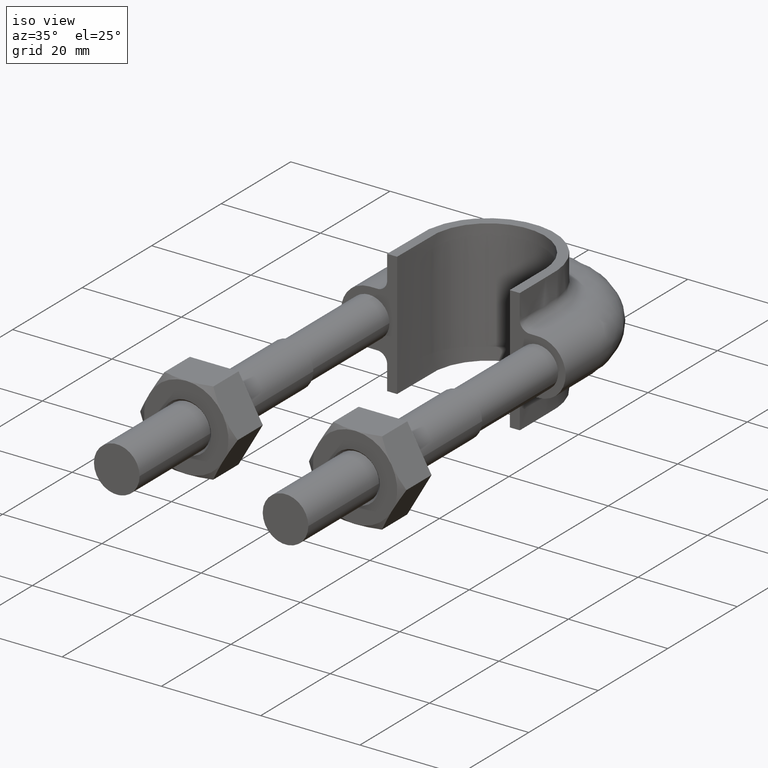
[diagram: clean part render]
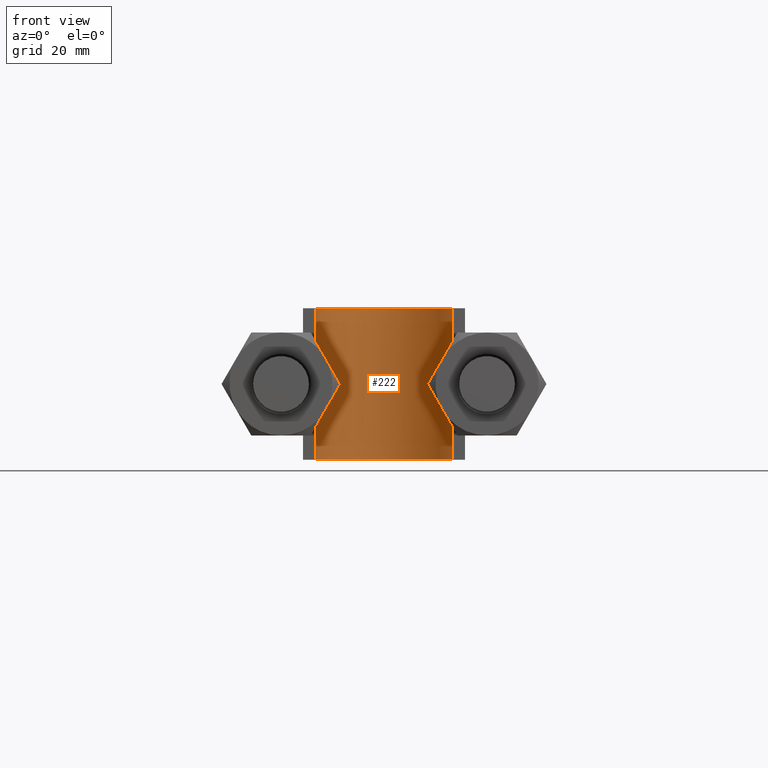
[diagram: tour spotlight — one face highlighted and labeled with its STEP entity id]
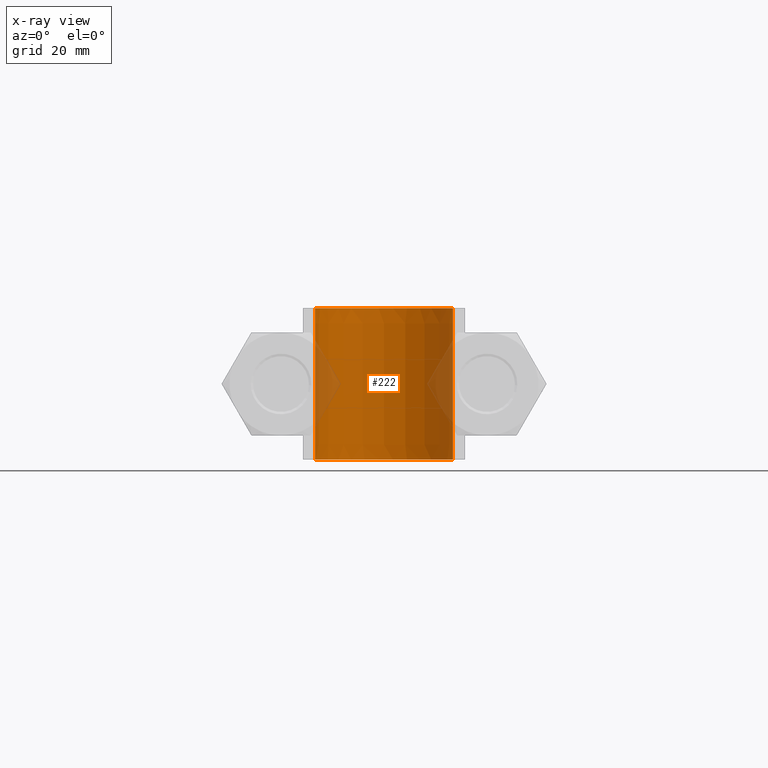
[diagram: x-ray of the same camera — body ghosted, this tour face saturated]
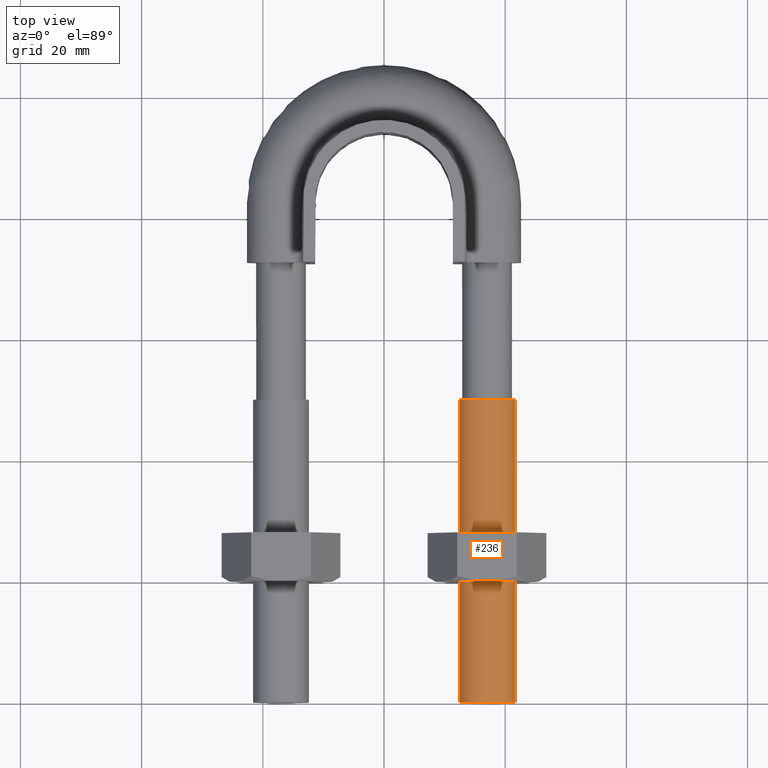
[diagram: tour spotlight — one face highlighted and labeled with its STEP entity id]
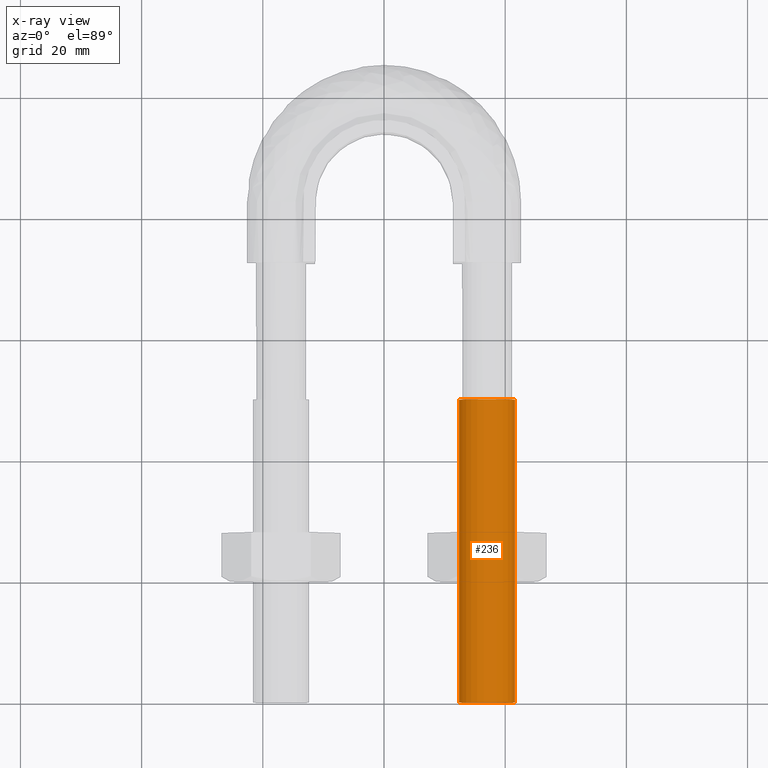
[diagram: x-ray of the same camera — body ghosted, this tour face saturated]
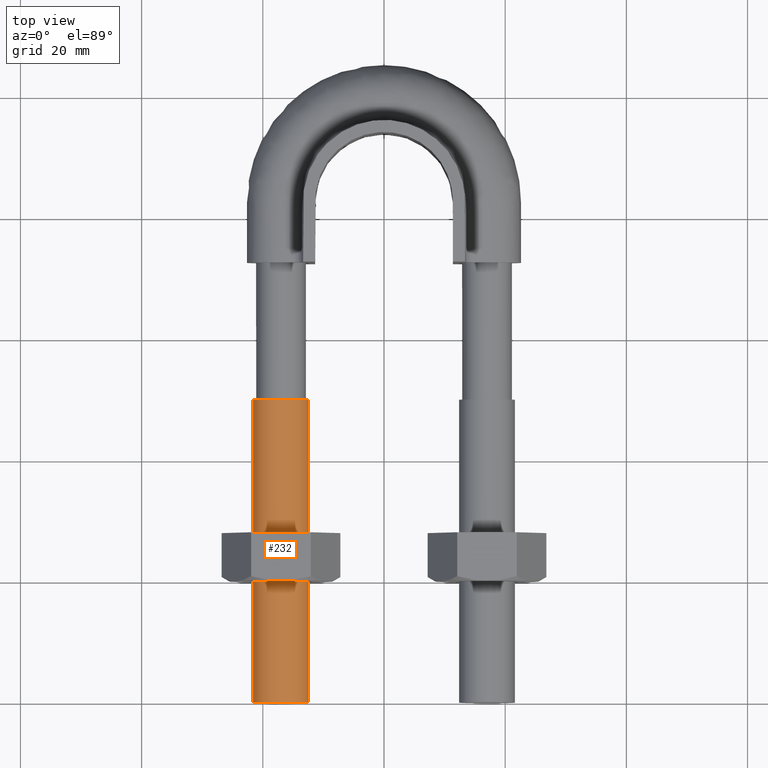
[diagram: tour spotlight — one face highlighted and labeled with its STEP entity id]
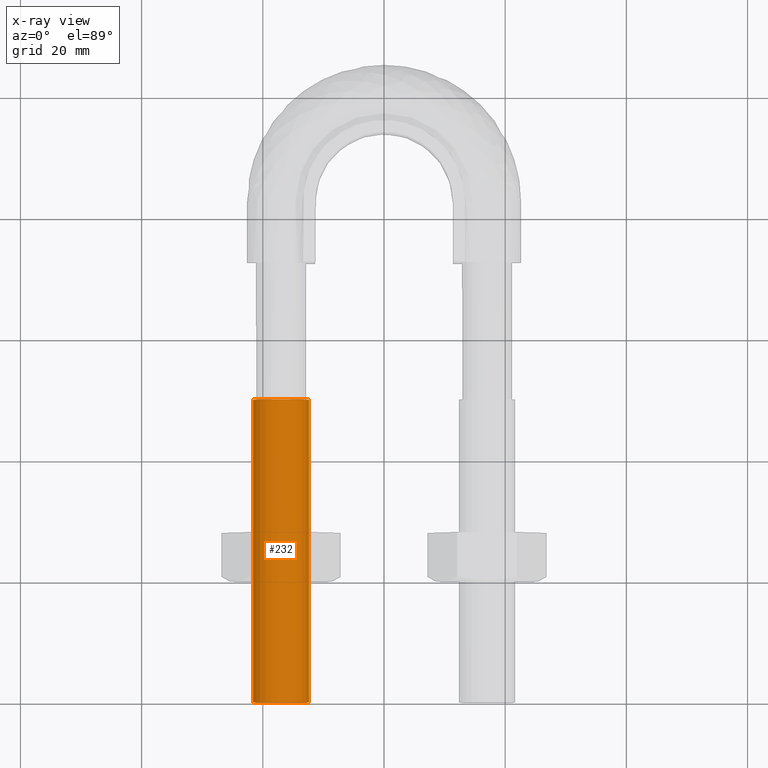
[diagram: x-ray of the same camera — body ghosted, this tour face saturated]
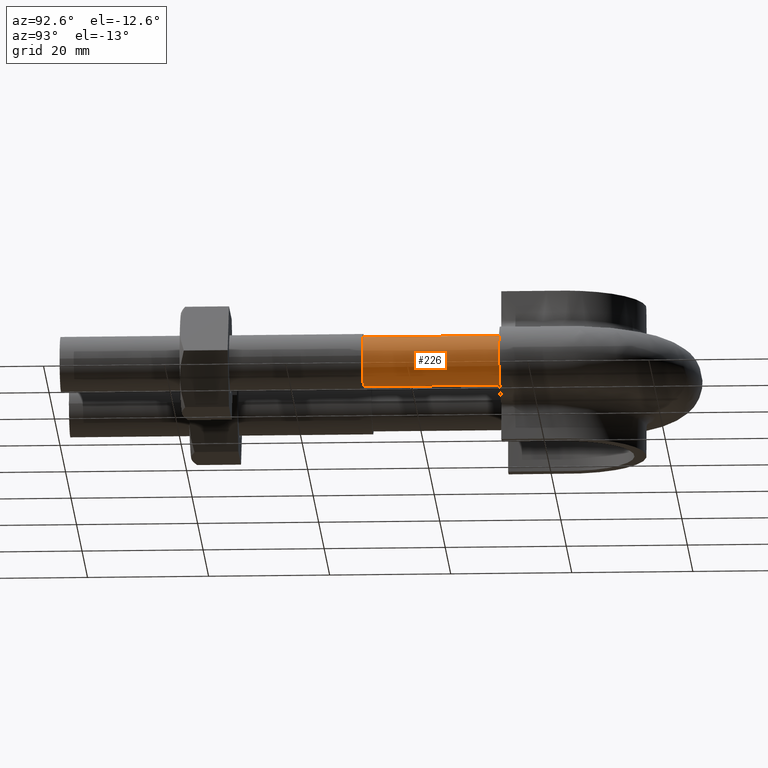
[diagram: tour spotlight — one face highlighted and labeled with its STEP entity id]
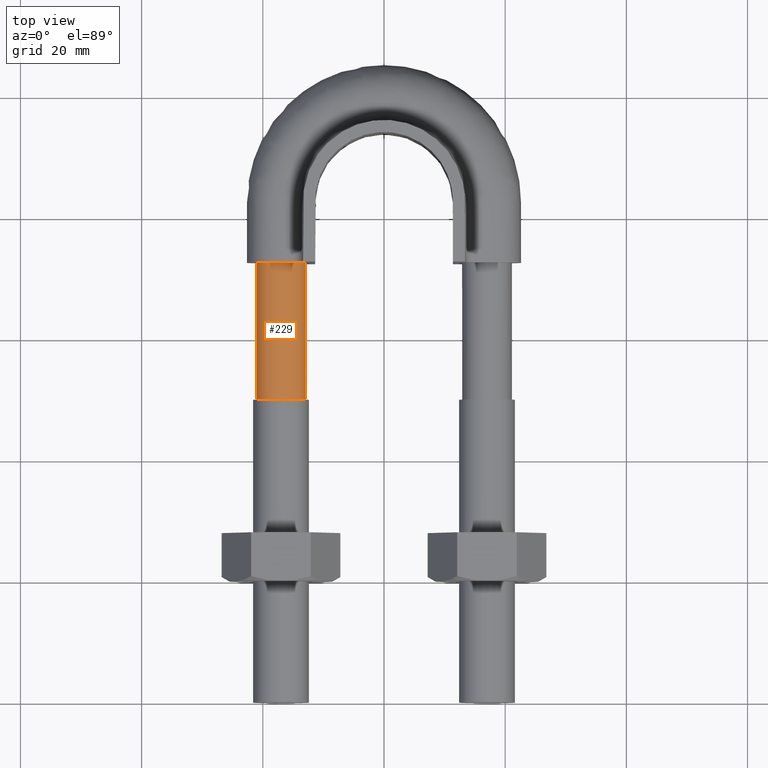
[diagram: tour spotlight — one face highlighted and labeled with its STEP entity id]
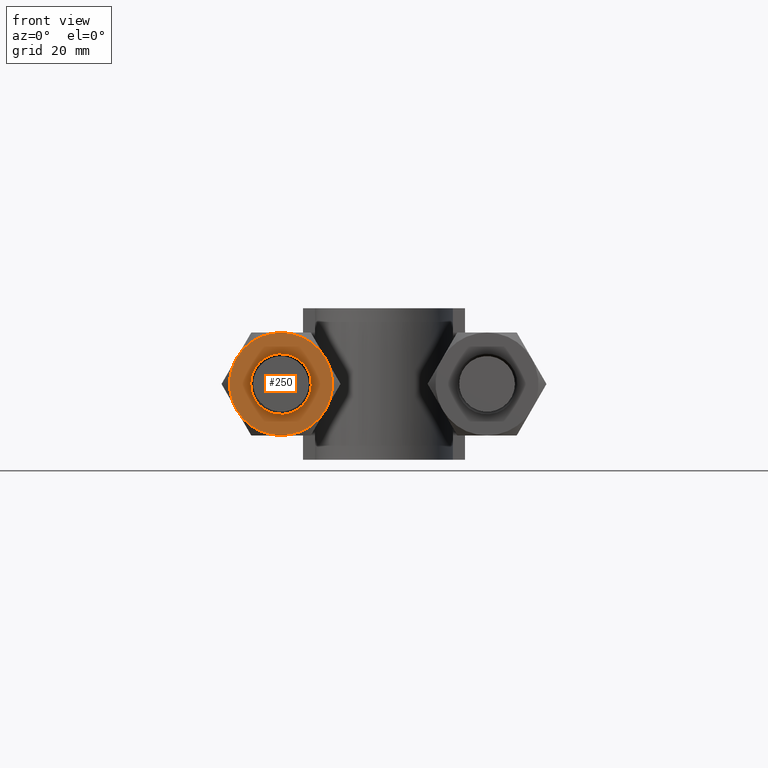
[diagram: tour spotlight — one face highlighted and labeled with its STEP entity id]
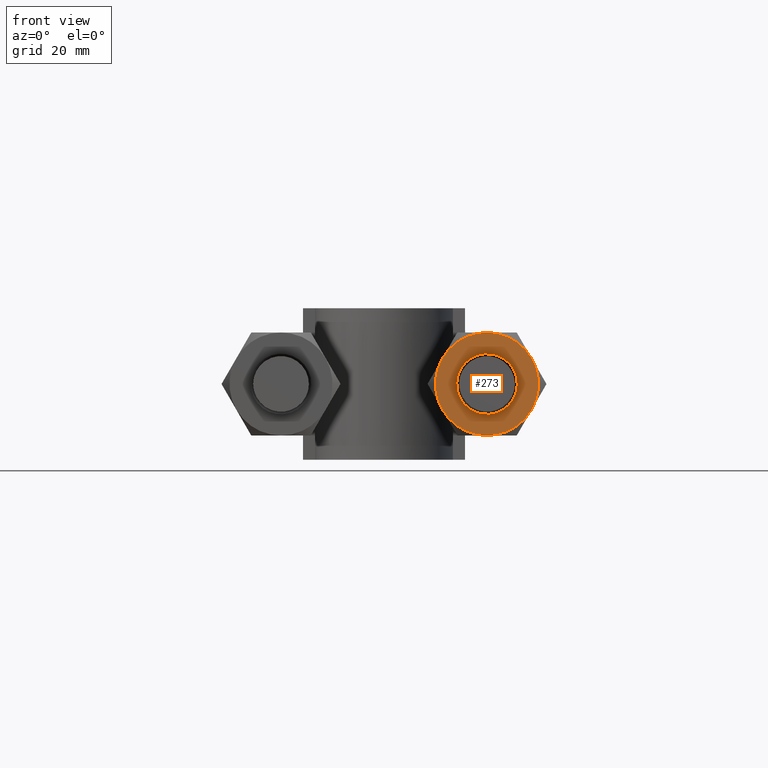
[diagram: tour spotlight — one face highlighted and labeled with its STEP entity id]
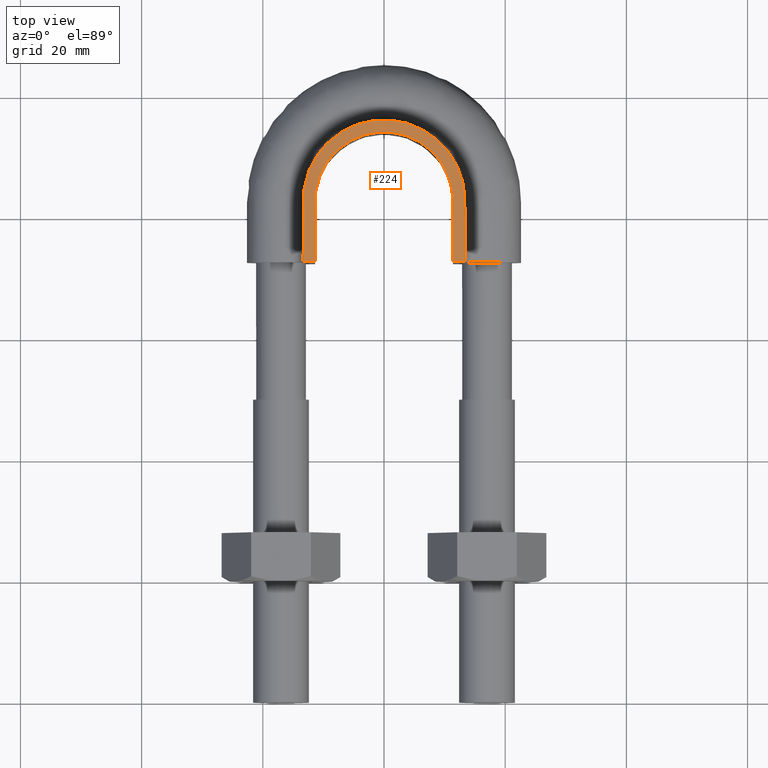
[diagram: tour spotlight — one face highlighted and labeled with its STEP entity id]
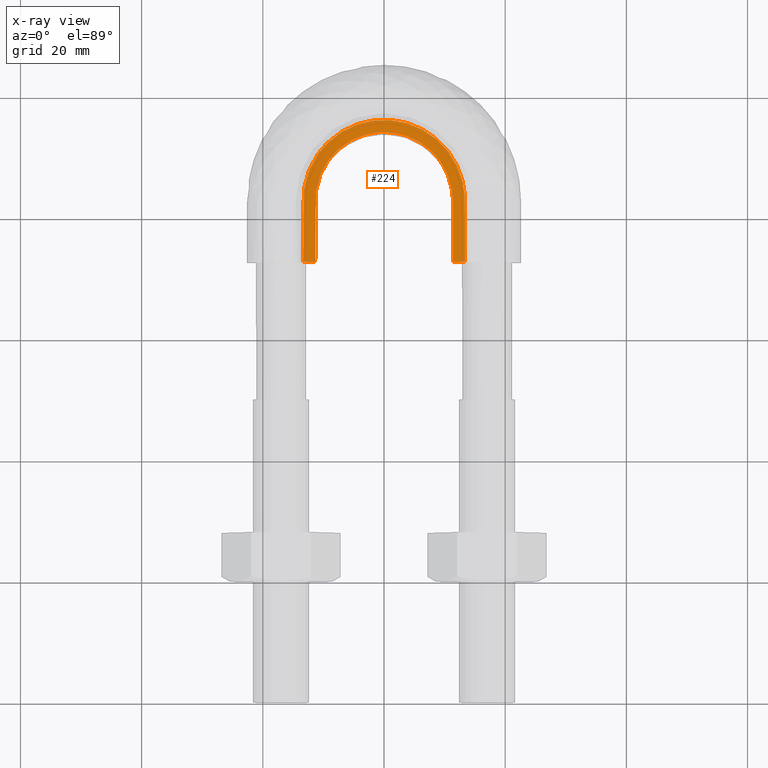
[diagram: x-ray of the same camera — body ghosted, this tour face saturated]
A machine part: a face-by-face anatomy tour. The part has 76 B-rep faces; the first image is the clean iso view, then the 8 largest visible faces are spotlighted one at a time (largest first), each with its STEP entity span.

Face 1 — front view, entity #222. An x-ray twin of the same camera follows (body ghosted, this face saturated) — the face is partly hidden behind the body. In plain terms, the highlighted face is a SurfaceOfExtrusion surface.
Definition (entity closure, byte-faithful):
#222 = ADVANCED_FACE( '', ( #304 ), #305, .T. );
#304 = FACE_OUTER_BOUND( '', #476, .T. );
#305 = SURFACE_OF_LINEAR_EXTRUSION( '', #477, #478 );
#476 = EDGE_LOOP( '', ( #1570, #1571, #1572, #1573 ) );
#477 = B_SPLINE_CURVE_WITH_KNOTS( '', 3, ( #1574, #1575, #1576, #1577, #1578, #1579, #1580, #1581, #1582, #1583, #1584, #1585, #1586, #1587, #1588, #1589, #1590, #1591, #1592 ), .UNSPECIFIED., .F., .F., ( 4, 3, 1, 1, 1, 3, 1, 1, 1, 3, 4 ), ( 0.233587786259540, 1.00000000000000, 1.50000000000000, 2.00000000000000, 3.00000000000000, 3.50000000000000, 4.00000000000000, 5.00000000000000, 5.50000000000000, 6.00000000000000, 6.76641221374046 ), .UNSPECIFIED. );
#478 = VECTOR( '', #1593, 1000.00000000000 );
#1570 = ORIENTED_EDGE( '', *, *, #2099, .F. );
#1571 = ORIENTED_EDGE( '', *, *, #2088, .F. );
#1572 = ORIENTED_EDGE( '', *, *, #2092, .T. );
#1573 = ORIENTED_EDGE( '', *, *, #2096, .T. );
#1574 = CARTESIAN_POINT( '', ( -11.3600000000000, 72.6000000000000, -51.4398853821152 ) );
#1575 = CARTESIAN_POINT( '', ( -11.3600000000000, 75.9466666666667, -51.4398853821152 ) );
#1576 = CARTESIAN_POINT( '', ( -11.3600000000000, 79.2933333333333, -51.4398853821152 ) );
#1577 = CARTESIAN_POINT( '', ( -11.3600000000000, 82.6400000000000, -51.4398853821152 ) );
#1578 = CARTESIAN_POINT( '', ( -11.3600000000000, 83.8077712693896, -51.4398853821152 ) );
#1579 = CARTESIAN_POINT( '', ( -10.9694754798677, 86.2135804441069, -51.4398853821152 ) );
#1580 = CARTESIAN_POINT( '', ( -8.80678888755957, 90.5012231129956, -51.4398853821152 ) );
#1581 = CARTESIAN_POINT( '', ( -4.75977254080473, 93.4440020251130, -51.4398853821152 ) );
#1582 = CARTESIAN_POINT( '', ( -1.18994313520117, 93.9957730711349, -51.4398853821152 ) );
#1583 = CARTESIAN_POINT( '', ( 1.84496759974430E-014, 93.9957730711349, -51.4398853821152 ) );
#1584 = CARTESIAN_POINT( '', ( 1.18994313520120, 93.9957730711349, -51.4398853821152 ) );
#1585 = CARTESIAN_POINT( '', ( 4.75977254080476, 93.4440020251129, -51.4398853821152 ) );
#1586 = CARTESIAN_POINT( '', ( 8.80678888755960, 90.5012231129957, -51.4398853821152 ) );
#1587 = CARTESIAN_POINT( '', ( 10.9694754798677, 86.2135804441069, -51.4398853821152 ) );
#1588 = CARTESIAN_POINT( '', ( 11.3600000000000, 83.8077712693896, -51.4398853821152 ) );
#1589 = CARTESIAN_POINT( '', ( 11.3600000000000, 82.6400000000000, -51.4398853821152 ) );
#1590 = CARTESIAN_POINT( '', ( 11.3600000000000, 79.2933333333333, -51.4398853821152 ) );
#1591 = CARTESIAN_POINT( '', ( 11.3600000000000, 75.9466666666667, -51.4398853821152 ) );
#1592 = CARTESIAN_POINT( '', ( 11.3600000000000, 72.6000000000000, -51.4398853821152 ) );
#1593 = DIRECTION( '', ( 0.000000000000000, 0.000000000000000, 1.00000000000000 ) );
#2088 = EDGE_CURVE( '', #2241, #2242, #2243, .T. );
#2092 = EDGE_CURVE( '', #2241, #2249, #2250, .T. );
#2096 = EDGE_CURVE( '', #2249, #2256, #2257, .T. );
#2099 = EDGE_CURVE( '', #2242, #2256, #2261, .T. );
#2241 = VERTEX_POINT( '', #2500 );
#2242 = VERTEX_POINT( '', #2501 );
#2243 = LINE( '', #2502, #2503 );
#2249 = VERTEX_POINT( '', #2541 );
#2250 = B_SPLINE_CURVE_WITH_KNOTS( '', 3, ( #2542, #2543, #2544, #2545, #2546, #2547, #2548, #2549, #2550, #2551, #2552, #2553, #2554, #2555, #2556, #2557, #2558, #2559, #2560 ), .UNSPECIFIED., .F., .F., ( 4, 3, 1, 1, 1, 3, 1, 1, 1, 3, 4 ), ( 0.233587786259540, 1.00000000000000, 1.50000000000000, 2.00000000000000, 3.00000000000000, 3.50000000000000, 4.00000000000000, 5.00000000000000, 5.50000000000000, 6.00000000000000, 6.76641221374046 ), .UNSPECIFIED. );
#2256 = VERTEX_POINT( '', #2594 );
#2257 = LINE( '', #2595, #2596 );
#2261 = B_SPLINE_CURVE_WITH_KNOTS( '', 3, ( #2631, #2632, #2633, #2634, #2635, #2636, #2637, #2638, #2639, #2640, #2641, #2642, #2643, #2644, #2645, #2646, #2647, #2648, #2649 ), .UNSPECIFIED., .F., .F., ( 4, 3, 1, 1, 1, 3, 1, 1, 1, 3, 4 ), ( 0.233587786259540, 1.00000000000000, 1.50000000000000, 2.00000000000000, 3.00000000000000, 3.50000000000000, 4.00000000000000, 5.00000000000000, 5.50000000000000, 6.00000000000000, 6.76641221374046 ), .UNSPECIFIED. );
#2500 = CARTESIAN_POINT( '', ( -11.3600000000000, 72.6000000000000, -12.5000000000000 ) );
#2501 = CARTESIAN_POINT( '', ( -11.3600000000000, 72.6000000000000, 12.5000000000000 ) );
#2502 = CARTESIAN_POINT( '', ( -11.3600000000000, 72.6000000000000, -51.4398853821152 ) );
#2503 = VECTOR( '', #3109, 1000.00000000000 );
#2541 = CARTESIAN_POINT( '', ( 11.3600000000000, 72.6000000000000, -12.5000000000000 ) );
#2542 = CARTESIAN_POINT( '', ( -11.3600000000000, 72.6000000000000, -12.5000000000000 ) );
#2543 = CARTESIAN_POINT( '', ( -11.3600000000000, 75.9466666666667, -12.5000000000000 ) );
#2544 = CARTESIAN_POINT( '', ( -11.3600000000000, 79.2933333333333, -12.5000000000000 ) );
#2545 = CARTESIAN_POINT( '', ( -11.3600000000000, 82.6400000000000, -12.5000000000000 ) );
#2546 = CARTESIAN_POINT( '', ( -11.3600000000000, 83.8077712693896, -12.5000000000000 ) );
#2547 = CARTESIAN_POINT( '', ( -10.9694754798677, 86.2135804441069, -12.5000000000000 ) );
#2548 = CARTESIAN_POINT( '', ( -8.80678888755957, 90.5012231129956, -12.5000000000000 ) );
#2549 = CARTESIAN_POINT( '', ( -4.75977254080473, 93.4440020251130, -12.5000000000000 ) );
#2550 = CARTESIAN_POINT( '', ( -1.18994313520117, 93.9957730711349, -12.5000000000000 ) );
#2551 = CARTESIAN_POINT( '', ( 1.84496759974430E-014, 93.9957730711349, -12.5000000000000 ) );
#2552 = CARTESIAN_POINT( '', ( 1.18994313520120, 93.9957730711349, -12.5000000000000 ) );
#2553 = CARTESIAN_POINT( '', ( 4.75977254080476, 93.4440020251129, -12.5000000000000 ) );
#2554 = CARTESIAN_POINT( '', ( 8.80678888755960, 90.5012231129957, -12.5000000000000 ) );
#2555 = CARTESIAN_POINT( '', ( 10.9694754798677, 86.2135804441069, -12.5000000000000 ) );
#2556 = CARTESIAN_POINT( '', ( 11.3600000000000, 83.8077712693896, -12.5000000000000 ) );
#2557 = CARTESIAN_POINT( '', ( 11.3600000000000, 82.6400000000000, -12.5000000000000 ) );
#2558 = CARTESIAN_POINT( '', ( 11.3600000000000, 79.2933333333333, -12.5000000000000 ) );
#2559 = CARTESIAN_POINT( '', ( 11.3600000000000, 75.9466666666667, -12.5000000000000 ) );
#2560 = CARTESIAN_POINT( '', ( 11.3600000000000, 72.6000000000000, -12.5000000000000 ) );
#2594 = CARTESIAN_POINT( '', ( 11.3600000000000, 72.6000000000000, 12.5000000000000 ) );
#2595 = CARTESIAN_POINT( '', ( 11.3600000000000, 72.6000000000000, -51.4398853821152 ) );
#2596 = VECTOR( '', #3113, 1000.00000000000 );
#2631 = CARTESIAN_POINT( '', ( -11.3600000000000, 72.6000000000000, 12.5000000000000 ) );
#2632 = CARTESIAN_POINT( '', ( -11.3600000000000, 75.9466666666667, 12.5000000000000 ) );
#2633 = CARTESIAN_POINT( '', ( -11.3600000000000, 79.2933333333333, 12.5000000000000 ) );
#2634 = CARTESIAN_POINT( '', ( -11.3600000000000, 82.6400000000000, 12.5000000000000 ) );
#2635 = CARTESIAN_POINT( '', ( -11.3600000000000, 83.8077712693896, 12.5000000000000 ) );
#2636 = CARTESIAN_POINT( '', ( -10.9694754798677, 86.2135804441069, 12.5000000000000 ) );
#2637 = CARTESIAN_POINT( '', ( -8.80678888755957, 90.5012231129956, 12.5000000000000 ) );
#2638 = CARTESIAN_POINT( '', ( -4.75977254080473, 93.4440020251130, 12.5000000000000 ) );
#2639 = CARTESIAN_POINT( '', ( -1.18994313520117, 93.9957730711349, 12.5000000000000 ) );
#2640 = CARTESIAN_POINT( '', ( 1.84496759974430E-014, 93.9957730711349, 12.5000000000000 ) );
#2641 = CARTESIAN_POINT( '', ( 1.18994313520120, 93.9957730711349, 12.5000000000000 ) );
#2642 = CARTESIAN_POINT( '', ( 4.75977254080476, 93.4440020251129, 12.5000000000000 ) );
#2643 = CARTESIAN_POINT( '', ( 8.80678888755960, 90.5012231129957, 12.5000000000000 ) );
#2644 = CARTESIAN_POINT( '', ( 10.9694754798677, 86.2135804441069, 12.5000000000000 ) );
#2645 = CARTESIAN_POINT( '', ( 11.3600000000000, 83.8077712693896, 12.5000000000000 ) );
#2646 = CARTESIAN_POINT( '', ( 11.3600000000000, 82.6400000000000, 12.5000000000000 ) );
#2647 = CARTESIAN_POINT( '', ( 11.3600000000000, 79.2933333333333, 12.5000000000000 ) );
#2648 = CARTESIAN_POINT( '', ( 11.3600000000000, 75.9466666666667, 12.5000000000000 ) );
#2649 = CARTESIAN_POINT( '', ( 11.3600000000000, 72.6000000000000, 12.5000000000000 ) );
#3109 = DIRECTION( '', ( 0.000000000000000, 0.000000000000000, 1.00000000000000 ) );
#3113 = DIRECTION( '', ( 0.000000000000000, 0.000000000000000, 1.00000000000000 ) );

Face 2 — top view, entity #236. An x-ray twin of the same camera follows (body ghosted, this face saturated) — the face is partly hidden behind the body. In plain terms, the highlighted cylindrical surface (bore or boss wall) has radius 4.6 mm, axis along (0, 1, -0).
Definition (entity closure, byte-faithful):
#236 = ADVANCED_FACE( '', ( #338, #339 ), #340, .T. );
#338 = FACE_OUTER_BOUND( '', #1417, .T. );
#339 = FACE_OUTER_BOUND( '', #1418, .T. );
#340 = CYLINDRICAL_SURFACE( '', #1419, 4.60000000000000 );
#1417 = EDGE_LOOP( '', ( #1677 ) );
#1418 = EDGE_LOOP( '', ( #1678 ) );
#1419 = AXIS2_PLACEMENT_3D( '', #1679, #1680, #1681 );
#1677 = ORIENTED_EDGE( '', *, *, #2133, .T. );
#1678 = ORIENTED_EDGE( '', *, *, #2134, .F. );
#1679 = CARTESIAN_POINT( '', ( 17.0000000000000, 50.0000000000000, -1.54484091534693E-014 ) );
#1680 = DIRECTION( '', ( 2.44921270764475E-016, 1.00000000000000, -3.06151588455594E-016 ) );
#1681 = DIRECTION( '', ( 1.00000000000000, -2.44921270764475E-016, -1.09476442525376E-047 ) );
#2133 = EDGE_CURVE( '', #2313, #2313, #2314, .T. );
#2134 = EDGE_CURVE( '', #2315, #2315, #2316, .T. );
#2313 = VERTEX_POINT( '', #2761 );
#2314 = CIRCLE( '', #2762, 4.60000000000000 );
#2315 = VERTEX_POINT( '', #2763 );
#2316 = CIRCLE( '', #2764, 4.60000000000000 );
#2761 = CARTESIAN_POINT( '', ( 21.6000000000000, 50.0000000000000, -1.54484091534693E-014 ) );
#2762 = AXIS2_PLACEMENT_3D( '', #3169, #3170, #3171 );
#2763 = CARTESIAN_POINT( '', ( 21.6000000000000, -5.29029944851267E-015, -1.40829730689573E-016 ) );
#2764 = AXIS2_PLACEMENT_3D( '', #3172, #3173, #3174 );
#3169 = CARTESIAN_POINT( '', ( 17.0000000000000, 50.0000000000000, -1.54484091534693E-014 ) );
#3170 = DIRECTION( '', ( -2.44921270764475E-016, -1.00000000000000, 3.06151588455594E-016 ) );
#3171 = DIRECTION( '', ( 1.00000000000000, -2.44921270764475E-016, -1.09476442525376E-047 ) );
#3172 = CARTESIAN_POINT( '', ( 17.0000000000000, -4.16366160299608E-015, -1.40829730689573E-016 ) );
#3173 = DIRECTION( '', ( -2.44921270764475E-016, -1.00000000000000, 3.06151588455594E-016 ) );
#3174 = DIRECTION( '', ( 1.00000000000000, -2.44921270764475E-016, -1.09476442525376E-047 ) );

Face 3 — top view, entity #232. An x-ray twin of the same camera follows (body ghosted, this face saturated) — the face is partly hidden behind the body. In plain terms, the highlighted cylindrical surface (bore or boss wall) has radius 4.6 mm, axis along (0, 1, -0).
Definition (entity closure, byte-faithful):
#232 = ADVANCED_FACE( '', ( #328, #329 ), #330, .T. );
#328 = FACE_OUTER_BOUND( '', #1407, .T. );
#329 = FACE_OUTER_BOUND( '', #1408, .T. );
#330 = CYLINDRICAL_SURFACE( '', #1409, 4.60000000000000 );
#1407 = EDGE_LOOP( '', ( #1658 ) );
#1408 = EDGE_LOOP( '', ( #1659 ) );
#1409 = AXIS2_PLACEMENT_3D( '', #1660, #1661, #1662 );
#1658 = ORIENTED_EDGE( '', *, *, #2131, .T. );
#1659 = ORIENTED_EDGE( '', *, *, #2132, .F. );
#1660 = CARTESIAN_POINT( '', ( -17.0000000000000, 50.0000000000000, -1.54484091534693E-014 ) );
#1661 = DIRECTION( '', ( 2.44921270764475E-016, 1.00000000000000, -3.06151588455594E-016 ) );
#1662 = DIRECTION( '', ( 1.00000000000000, -2.44921270764475E-016, -1.09476442525376E-047 ) );
#2131 = EDGE_CURVE( '', #2309, #2309, #2310, .T. );
#2132 = EDGE_CURVE( '', #2311, #2311, #2312, .T. );
#2309 = VERTEX_POINT( '', #2757 );
#2310 = CIRCLE( '', #2758, 4.60000000000000 );
#2311 = VERTEX_POINT( '', #2759 );
#2312 = CIRCLE( '', #2760, 4.60000000000000 );
#2757 = CARTESIAN_POINT( '', ( -12.4000000000000, 50.0000000000000, -1.54484091534693E-014 ) );
#2758 = AXIS2_PLACEMENT_3D( '', #3163, #3164, #3165 );
#2759 = CARTESIAN_POINT( '', ( -12.4000000000000, 3.03702375747950E-015, -1.40829730689574E-016 ) );
#2760 = AXIS2_PLACEMENT_3D( '', #3166, #3167, #3168 );
#3163 = CARTESIAN_POINT( '', ( -17.0000000000000, 50.0000000000000, -1.54484091534693E-014 ) );
#3164 = DIRECTION( '', ( -2.44921270764475E-016, -1.00000000000000, 3.06151588455594E-016 ) );
#3165 = DIRECTION( '', ( 1.00000000000000, -2.44921270764475E-016, -3.65835795450744E-047 ) );
#3166 = CARTESIAN_POINT( '', ( -17.0000000000000, 4.16366160299608E-015, -1.40829730689574E-016 ) );
#3167 = DIRECTION( '', ( -2.44921270764475E-016, -1.00000000000000, 3.06151588455594E-016 ) );
#3168 = DIRECTION( '', ( 1.00000000000000, -2.44921270764475E-016, -3.65835795450744E-047 ) );

Face 4 — auxiliary view, entity #226. In plain terms, the highlighted cylindrical surface (bore or boss wall) has radius 4.1 mm, axis along (0, 1, -0).
Definition (entity closure, byte-faithful):
#226 = ADVANCED_FACE( '', ( #313, #314 ), #315, .T. );
#313 = FACE_OUTER_BOUND( '', #1233, .T. );
#314 = FACE_OUTER_BOUND( '', #1234, .T. );
#315 = CYLINDRICAL_SURFACE( '', #1235, 4.10000000000000 );
#1233 = EDGE_LOOP( '', ( #1607, #1608, #1609, #1610, #1611, #1612, #1613 ) );
#1234 = EDGE_LOOP( '', ( #1614 ) );
#1235 = AXIS2_PLACEMENT_3D( '', #1615, #1616, #1617 );
#1607 = ORIENTED_EDGE( '', *, *, #2101, .T. );
#1608 = ORIENTED_EDGE( '', *, *, #2102, .T. );
#1609 = ORIENTED_EDGE( '', *, *, #2103, .T. );
#1610 = ORIENTED_EDGE( '', *, *, #2104, .T. );
#1611 = ORIENTED_EDGE( '', *, *, #2105, .T. );
#1612 = ORIENTED_EDGE( '', *, *, #2106, .T. );
#1613 = ORIENTED_EDGE( '', *, *, #2107, .T. );
#1614 = ORIENTED_EDGE( '', *, *, #2108, .T. );
#1615 = CARTESIAN_POINT( '', ( 17.0000000000000, 72.6000000000000, -1.01213715143419E-014 ) );
#1616 = DIRECTION( '', ( 2.44921270764475E-016, 1.00000000000000, -3.06151588455594E-016 ) );
#1617 = DIRECTION( '', ( 1.00000000000000, -2.44921270764475E-016, -5.47382212626882E-048 ) );
#2101 = EDGE_CURVE( '', #2263, #2264, #2265, .T. );
#2102 = EDGE_CURVE( '', #2264, #2266, #2267, .T. );
#2103 = EDGE_CURVE( '', #2266, #2268, #2269, .T. );
#2104 = EDGE_CURVE( '', #2268, #2270, #2271, .T. );
#2105 = EDGE_CURVE( '', #2270, #2272, #2273, .T. );
#2106 = EDGE_CURVE( '', #2272, #2274, #2275, .T. );
#2107 = EDGE_CURVE( '', #2274, #2263, #2276, .T. );
#2108 = EDGE_CURVE( '', #2277, #2277, #2278, .F. );
#2263 = VERTEX_POINT( '', #2669 );
#2264 = VERTEX_POINT( '', #2670 );
#2265 = CIRCLE( '', #2671, 4.10000000000000 );
#2266 = VERTEX_POINT( '', #2672 );
#2267 = CIRCLE( '', #2673, 4.10000000000000 );
#2268 = VERTEX_POINT( '', #2674 );
#2269 = CIRCLE( '', #2675, 4.10000000000000 );
#2270 = VERTEX_POINT( '', #2676 );
#2271 = CIRCLE( '', #2677, 4.10000000000000 );
#2272 = VERTEX_POINT( '', #2678 );
#2273 = CIRCLE( '', #2679, 4.10000000000000 );
#2274 = VERTEX_POINT( '', #2680 );
#2275 = CIRCLE( '', #2681, 4.10000000000000 );
#2276 = CIRCLE( '', #2682, 4.10000000000000 );
#2277 = VERTEX_POINT( '', #2683 );
#2278 = CIRCLE( '', #2684, 4.10000000000000 );
#2669 = CARTESIAN_POINT( '', ( 20.6939723583998, 72.6000000000000, 1.77892333038217 ) );
#2670 = CARTESIAN_POINT( '', ( 17.9123358292209, 72.6000000000000, 3.99720443994548 ) );
#2671 = AXIS2_PLACEMENT_3D( '', #3115, #3116, #3117 );
#2672 = CARTESIAN_POINT( '', ( 14.4436918123793, 72.6000000000000, 3.20550907811898 ) );
#2673 = AXIS2_PLACEMENT_3D( '', #3118, #3119, #3120 );
#2674 = CARTESIAN_POINT( '', ( 12.9000000000000, 72.6000000000000, 1.83395593916885E-013 ) );
#2675 = AXIS2_PLACEMENT_3D( '', #3121, #3122, #3123 );
#2676 = CARTESIAN_POINT( '', ( 14.4436918123815, 72.6000000000000, -3.20550907812077 ) );
#2677 = AXIS2_PLACEMENT_3D( '', #3124, #3125, #3126 );
#2678 = CARTESIAN_POINT( '', ( 17.9123358292212, 72.6000000000000, -3.99720443994540 ) );
#2679 = AXIS2_PLACEMENT_3D( '', #3127, #3128, #3129 );
#2680 = CARTESIAN_POINT( '', ( 20.6939723584000, 72.6000000000000, -1.77892333038189 ) );
#2681 = AXIS2_PLACEMENT_3D( '', #3130, #3131, #3132 );
#2682 = AXIS2_PLACEMENT_3D( '', #3133, #3134, #3135 );
#2683 = CARTESIAN_POINT( '', ( 17.0000000000000, 50.0000000000000, -4.10000000000000 ) );
#2684 = AXIS2_PLACEMENT_3D( '', #3136, #3137, #3138 );
#3115 = CARTESIAN_POINT( '', ( 17.0000000000000, 72.6000000000000, -1.01213715143419E-014 ) );
#3116 = DIRECTION( '', ( -2.44921270764475E-016, -1.00000000000000, 3.06151588455594E-016 ) );
#3117 = DIRECTION( '', ( 1.00000000000000, -2.44921270764475E-016, -5.47382212626882E-048 ) );
#3118 = CARTESIAN_POINT( '', ( 17.0000000000000, 72.6000000000000, -1.01213715143419E-014 ) );
#3119 = DIRECTION( '', ( -2.44921270764475E-016, -1.00000000000000, 3.06151588455594E-016 ) );
#3120 = DIRECTION( '', ( 1.00000000000000, -2.44921270764475E-016, -5.47382212626882E-048 ) );
#3121 = CARTESIAN_POINT( '', ( 17.0000000000000, 72.6000000000000, -1.01213715143419E-014 ) );
#3122 = DIRECTION( '', ( -2.44921270764475E-016, -1.00000000000000, 3.06151588455594E-016 ) );
#3123 = DIRECTION( '', ( 1.00000000000000, -2.44921270764475E-016, -5.47382212626882E-048 ) );
#3124 = CARTESIAN_POINT( '', ( 17.0000000000000, 72.6000000000000, -1.01213715143419E-014 ) );
#3125 = DIRECTION( '', ( -2.44921270764475E-016, -1.00000000000000, 3.06151588455594E-016 ) );
#3126 = DIRECTION( '', ( 1.00000000000000, -2.44921270764475E-016, -5.47382212626882E-048 ) );
#3127 = CARTESIAN_POINT( '', ( 17.0000000000000, 72.6000000000000, -1.01213715143419E-014 ) );
#3128 = DIRECTION( '', ( -2.44921270764475E-016, -1.00000000000000, 3.06151588455594E-016 ) );
#3129 = DIRECTION( '', ( 1.00000000000000, -2.44921270764475E-016, -5.47382212626882E-048 ) );
#3130 = CARTESIAN_POINT( '', ( 17.0000000000000, 72.6000000000000, -1.01213715143419E-014 ) );
#3131 = DIRECTION( '', ( -2.44921270764475E-016, -1.00000000000000, 3.06151588455594E-016 ) );
#3132 = DIRECTION( '', ( 1.00000000000000, -2.44921270764475E-016, -5.47382212626882E-048 ) );
#3133 = CARTESIAN_POINT( '', ( 17.0000000000000, 72.6000000000000, -1.01213715143419E-014 ) );
#3134 = DIRECTION( '', ( -2.44921270764475E-016, -1.00000000000000, 3.06151588455594E-016 ) );
#3135 = DIRECTION( '', ( 1.00000000000000, -2.44921270764475E-016, -5.47382212626882E-048 ) );
#3136 = CARTESIAN_POINT( '', ( 17.0000000000000, 50.0000000000000, -3.20234561524552E-015 ) );
#3137 = DIRECTION( '', ( -2.44921270764475E-016, -1.00000000000000, 3.06151588455594E-016 ) );
#3138 = DIRECTION( '', ( 0.000000000000000, -3.06151588455594E-016, -1.00000000000000 ) );

Face 5 — top view, entity #229. In plain terms, the highlighted cylindrical surface (bore or boss wall) has radius 4.1 mm, axis along (0, 1, -0).
Definition (entity closure, byte-faithful):
#229 = ADVANCED_FACE( '', ( #320, #321 ), #322, .T. );
#320 = FACE_OUTER_BOUND( '', #1240, .T. );
#321 = FACE_OUTER_BOUND( '', #1241, .T. );
#322 = CYLINDRICAL_SURFACE( '', #1242, 4.10000000000000 );
#1240 = EDGE_LOOP( '', ( #1628, #1629, #1630, #1631, #1632, #1633, #1634 ) );
#1241 = EDGE_LOOP( '', ( #1635 ) );
#1242 = AXIS2_PLACEMENT_3D( '', #1636, #1637, #1638 );
#1628 = ORIENTED_EDGE( '', *, *, #2110, .T. );
#1629 = ORIENTED_EDGE( '', *, *, #2112, .T. );
#1630 = ORIENTED_EDGE( '', *, *, #2113, .T. );
#1631 = ORIENTED_EDGE( '', *, *, #2114, .T. );
#1632 = ORIENTED_EDGE( '', *, *, #2115, .T. );
#1633 = ORIENTED_EDGE( '', *, *, #2116, .T. );
#1634 = ORIENTED_EDGE( '', *, *, #2117, .T. );
#1635 = ORIENTED_EDGE( '', *, *, #2118, .T. );
#1636 = CARTESIAN_POINT( '', ( -17.0000000000000, 72.6000000000000, -1.01213715143420E-014 ) );
#1637 = DIRECTION( '', ( 2.44921270764475E-016, 1.00000000000000, -3.06151588455594E-016 ) );
#1638 = DIRECTION( '', ( 1.00000000000000, -2.44921270764475E-016, -5.47382212626882E-048 ) );
#2110 = EDGE_CURVE( '', #2280, #2279, #2282, .T. );
#2112 = EDGE_CURVE( '', #2279, #2283, #2285, .T. );
#2113 = EDGE_CURVE( '', #2283, #2286, #2287, .T. );
#2114 = EDGE_CURVE( '', #2286, #2288, #2289, .T. );
#2115 = EDGE_CURVE( '', #2288, #2290, #2291, .T. );
#2116 = EDGE_CURVE( '', #2290, #2292, #2293, .T. );
#2117 = EDGE_CURVE( '', #2292, #2280, #2294, .T. );
#2118 = EDGE_CURVE( '', #2295, #2295, #2296, .F. );
#2279 = VERTEX_POINT( '', #2685 );
#2280 = VERTEX_POINT( '', #2686 );
#2282 = CIRCLE( '', #2691, 4.10000000000000 );
#2283 = VERTEX_POINT( '', #2692 );
#2285 = CIRCLE( '', #2697, 4.10000000000000 );
#2286 = VERTEX_POINT( '', #2698 );
#2287 = CIRCLE( '', #2699, 4.10000000000000 );
#2288 = VERTEX_POINT( '', #2700 );
#2289 = CIRCLE( '', #2701, 4.10000000000000 );
#2290 = VERTEX_POINT( '', #2702 );
#2291 = CIRCLE( '', #2703, 4.10000000000000 );
#2292 = VERTEX_POINT( '', #2704 );
#2293 = CIRCLE( '', #2705, 4.10000000000000 );
#2294 = CIRCLE( '', #2706, 4.10000000000000 );
#2295 = VERTEX_POINT( '', #2707 );
#2296 = CIRCLE( '', #2708, 4.10000000000000 );
#2685 = CARTESIAN_POINT( '', ( -14.4436918123792, 72.6000000000000, 3.20550907811895 ) );
#2686 = CARTESIAN_POINT( '', ( -12.9000000000000, 72.6000000000000, 5.45698285646892E-014 ) );
#2691 = AXIS2_PLACEMENT_3D( '', #3139, #3140, #3141 );
#2692 = CARTESIAN_POINT( '', ( -17.9123358292209, 72.6000000000000, 3.99720443994546 ) );
#2697 = AXIS2_PLACEMENT_3D( '', #3142, #3143, #3144 );
#2698 = CARTESIAN_POINT( '', ( -20.6939723583998, 72.6000000000000, 1.77892333038219 ) );
#2699 = AXIS2_PLACEMENT_3D( '', #3145, #3146, #3147 );
#2700 = CARTESIAN_POINT( '', ( -20.6939723583881, 72.6000000000000, -1.77892333040658 ) );
#2701 = AXIS2_PLACEMENT_3D( '', #3148, #3149, #3150 );
#2702 = CARTESIAN_POINT( '', ( -17.9123358292208, 72.6000000000000, -3.99720443994550 ) );
#2703 = AXIS2_PLACEMENT_3D( '', #3151, #3152, #3153 );
#2704 = CARTESIAN_POINT( '', ( -14.4436918123791, 72.6000000000000, -3.20550907811886 ) );
#2705 = AXIS2_PLACEMENT_3D( '', #3154, #3155, #3156 );
#2706 = AXIS2_PLACEMENT_3D( '', #3157, #3158, #3159 );
#2707 = CARTESIAN_POINT( '', ( -17.0000000000000, 50.0000000000000, -4.10000000000000 ) );
#2708 = AXIS2_PLACEMENT_3D( '', #3160, #3161, #3162 );
#3139 = CARTESIAN_POINT( '', ( -17.0000000000000, 72.6000000000000, -1.01213715143420E-014 ) );
#3140 = DIRECTION( '', ( -2.44921270764475E-016, -1.00000000000000, 3.06151588455594E-016 ) );
#3141 = DIRECTION( '', ( 1.00000000000000, -2.44921270764475E-016, -1.98549565586675E-047 ) );
#3142 = CARTESIAN_POINT( '', ( -17.0000000000000, 72.6000000000000, -1.01213715143420E-014 ) );
#3143 = DIRECTION( '', ( -2.44921270764475E-016, -1.00000000000000, 3.06151588455594E-016 ) );
#3144 = DIRECTION( '', ( 1.00000000000000, -2.44921270764475E-016, -1.98549565586675E-047 ) );
#3145 = CARTESIAN_POINT( '', ( -17.0000000000000, 72.6000000000000, -1.01213715143420E-014 ) );
#3146 = DIRECTION( '', ( -2.44921270764475E-016, -1.00000000000000, 3.06151588455594E-016 ) );
#3147 = DIRECTION( '', ( 1.00000000000000, -2.44921270764475E-016, -1.98549565586675E-047 ) );
#3148 = CARTESIAN_POINT( '', ( -17.0000000000000, 72.6000000000000, -1.01213715143420E-014 ) );
#3149 = DIRECTION( '', ( -2.44921270764475E-016, -1.00000000000000, 3.06151588455594E-016 ) );
#3150 = DIRECTION( '', ( 1.00000000000000, -2.44921270764475E-016, -1.98549565586675E-047 ) );
#3151 = CARTESIAN_POINT( '', ( -17.0000000000000, 72.6000000000000, -1.01213715143420E-014 ) );
#3152 = DIRECTION( '', ( -2.44921270764475E-016, -1.00000000000000, 3.06151588455594E-016 ) );
#3153 = DIRECTION( '', ( 1.00000000000000, -2.44921270764475E-016, -1.98549565586675E-047 ) );
#3154 = CARTESIAN_POINT( '', ( -17.0000000000000, 72.6000000000000, -1.01213715143420E-014 ) );
#3155 = DIRECTION( '', ( -2.44921270764475E-016, -1.00000000000000, 3.06151588455594E-016 ) );
#3156 = DIRECTION( '', ( 1.00000000000000, -2.44921270764475E-016, -1.98549565586675E-047 ) );
#3157 = CARTESIAN_POINT( '', ( -17.0000000000000, 72.6000000000000, -1.01213715143420E-014 ) );
#3158 = DIRECTION( '', ( -2.44921270764475E-016, -1.00000000000000, 3.06151588455594E-016 ) );
#3159 = DIRECTION( '', ( 1.00000000000000, -2.44921270764475E-016, -1.98549565586675E-047 ) );
#3160 = CARTESIAN_POINT( '', ( -17.0000000000000, 50.0000000000000, -3.20234561524552E-015 ) );
#3161 = DIRECTION( '', ( -2.44921270764475E-016, -1.00000000000000, 3.06151588455594E-016 ) );
#3162 = DIRECTION( '', ( 0.000000000000000, -3.06151588455594E-016, -1.00000000000000 ) );

Face 6 — front view, entity #250. In plain terms, the highlighted planar face has unit normal (0, 1, -0).
Definition (entity closure, byte-faithful):
#250 = ADVANCED_FACE( '', ( #368, #369 ), #370, .F. );
#368 = FACE_OUTER_BOUND( '', #1447, .T. );
#369 = FACE_BOUND( '', #1448, .T. );
#370 = PLANE( '', #1449 );
#1447 = EDGE_LOOP( '', ( #1748, #1749, #1750, #1751, #1752, #1753 ) );
#1448 = EDGE_LOOP( '', ( #1754 ) );
#1449 = AXIS2_PLACEMENT_3D( '', #1755, #1756, #1757 );
#1748 = ORIENTED_EDGE( '', *, *, #2139, .F. );
#1749 = ORIENTED_EDGE( '', *, *, #2140, .F. );
#1750 = ORIENTED_EDGE( '', *, *, #2141, .F. );
#1751 = ORIENTED_EDGE( '', *, *, #2142, .F. );
#1752 = ORIENTED_EDGE( '', *, *, #2137, .F. );
#1753 = ORIENTED_EDGE( '', *, *, #2143, .F. );
#1754 = ORIENTED_EDGE( '', *, *, #2144, .T. );
#1755 = CARTESIAN_POINT( '', ( -17.0000000000000, 20.0000000000000, -6.36480885357616E-015 ) );
#1756 = DIRECTION( '', ( 2.44921270764475E-016, 1.00000000000000, -3.06151588455594E-016 ) );
#1757 = DIRECTION( '', ( -0.866025403784439, 3.65183836637000E-016, 0.500000000000000 ) );
#2137 = EDGE_CURVE( '', #2320, #2322, #2323, .T. );
#2139 = EDGE_CURVE( '', #2325, #2326, #2327, .T. );
#2140 = EDGE_CURVE( '', #2328, #2325, #2329, .T. );
#2141 = EDGE_CURVE( '', #2330, #2328, #2331, .T. );
#2142 = EDGE_CURVE( '', #2322, #2330, #2332, .T. );
#2143 = EDGE_CURVE( '', #2326, #2320, #2333, .T. );
#2144 = EDGE_CURVE( '', #2334, #2334, #2335, .T. );
#2320 = VERTEX_POINT( '', #2768 );
#2322 = VERTEX_POINT( '', #2775 );
#2323 = CIRCLE( '', #2776, 8.50000000000000 );
#2325 = VERTEX_POINT( '', #2785 );
#2326 = VERTEX_POINT( '', #2786 );
#2327 = CIRCLE( '', #2787, 8.50000000000000 );
#2328 = VERTEX_POINT( '', #2788 );
#2329 = CIRCLE( '', #2789, 8.50000000000000 );
#2330 = VERTEX_POINT( '', #2790 );
#2331 = CIRCLE( '', #2791, 8.50000000000000 );
#2332 = CIRCLE( '', #2792, 8.50000000000000 );
#2333 = CIRCLE( '', #2793, 8.50000000000000 );
#2334 = VERTEX_POINT( '', #2794 );
#2335 = CIRCLE( '', #2795, 5.00000000000000 );
#2768 = CARTESIAN_POINT( '', ( -9.63878406783227, 20.0000000000000, -4.25000000000001 ) );
#2775 = CARTESIAN_POINT( '', ( -17.0000000000000, 20.0000000000000, -8.50000000000001 ) );
#2776 = AXIS2_PLACEMENT_3D( '', #3178, #3179, #3180 );
#2785 = CARTESIAN_POINT( '', ( -17.0000000000000, 20.0000000000000, 8.49999999999999 ) );
#2786 = CARTESIAN_POINT( '', ( -9.63878406783227, 20.0000000000000, 4.24999999999999 ) );
#2787 = AXIS2_PLACEMENT_3D( '', #3181, #3182, #3183 );
#2788 = CARTESIAN_POINT( '', ( -24.3612159321677, 20.0000000000000, 4.24999999999999 ) );
#2789 = AXIS2_PLACEMENT_3D( '', #3184, #3185, #3186 );
#2790 = CARTESIAN_POINT( '', ( -24.3612159321677, 20.0000000000000, -4.25000000000001 ) );
#2791 = AXIS2_PLACEMENT_3D( '', #3187, #3188, #3189 );
#2792 = AXIS2_PLACEMENT_3D( '', #3190, #3191, #3192 );
#2793 = AXIS2_PLACEMENT_3D( '', #3193, #3194, #3195 );
#2794 = CARTESIAN_POINT( '', ( -21.3301270189222, 20.0000000000000, 2.49999999999999 ) );
#2795 = AXIS2_PLACEMENT_3D( '', #3196, #3197, #3198 );
#3178 = CARTESIAN_POINT( '', ( -17.0000000000000, 20.0000000000000, -6.36480885357616E-015 ) );
#3179 = DIRECTION( '', ( 2.44921270764475E-016, 1.00000000000000, -3.06151588455594E-016 ) );
#3180 = DIRECTION( '', ( -0.866025403784439, 3.65183836637000E-016, 0.500000000000000 ) );
#3181 = CARTESIAN_POINT( '', ( -17.0000000000000, 20.0000000000000, -6.36480885357616E-015 ) );
#3182 = DIRECTION( '', ( 2.44921270764475E-016, 1.00000000000000, -3.06151588455594E-016 ) );
#3183 = DIRECTION( '', ( -0.866025403784439, 3.65183836637000E-016, 0.500000000000000 ) );
#3184 = CARTESIAN_POINT( '', ( -17.0000000000000, 20.0000000000000, -6.36480885357616E-015 ) );
#3185 = DIRECTION( '', ( 2.44921270764475E-016, 1.00000000000000, -3.06151588455594E-016 ) );
#3186 = DIRECTION( '', ( -0.866025403784439, 3.65183836637000E-016, 0.500000000000000 ) );
#3187 = CARTESIAN_POINT( '', ( -17.0000000000000, 20.0000000000000, -6.36480885357616E-015 ) );
#3188 = DIRECTION( '', ( 2.44921270764475E-016, 1.00000000000000, -3.06151588455594E-016 ) );
#3189 = DIRECTION( '', ( -0.866025403784439, 3.65183836637000E-016, 0.500000000000000 ) );
#3190 = CARTESIAN_POINT( '', ( -17.0000000000000, 20.0000000000000, -6.36480885357616E-015 ) );
#3191 = DIRECTION( '', ( 2.44921270764475E-016, 1.00000000000000, -3.06151588455594E-016 ) );
#3192 = DIRECTION( '', ( -0.866025403784439, 3.65183836637000E-016, 0.500000000000000 ) );
#3193 = CARTESIAN_POINT( '', ( -17.0000000000000, 20.0000000000000, -6.36480885357616E-015 ) );
#3194 = DIRECTION( '', ( 2.44921270764475E-016, 1.00000000000000, -3.06151588455594E-016 ) );
#3195 = DIRECTION( '', ( -0.866025403784439, 3.65183836637000E-016, 0.500000000000000 ) );
#3196 = CARTESIAN_POINT( '', ( -17.0000000000000, 20.0000000000000, -6.36480885357616E-015 ) );
#3197 = DIRECTION( '', ( 2.44921270764475E-016, 1.00000000000000, -3.06151588455594E-016 ) );
#3198 = DIRECTION( '', ( -0.866025403784439, 3.65183836637000E-016, 0.500000000000000 ) );

Face 7 — front view, entity #273. In plain terms, the highlighted planar face has unit normal (0, 1, -0).
Definition (entity closure, byte-faithful):
#273 = ADVANCED_FACE( '', ( #419, #420 ), #421, .F. );
#419 = FACE_OUTER_BOUND( '', #1498, .T. );
#420 = FACE_BOUND( '', #1499, .T. );
#421 = PLANE( '', #1500 );
#1498 = EDGE_LOOP( '', ( #1921, #1922, #1923, #1924, #1925, #1926 ) );
#1499 = EDGE_LOOP( '', ( #1927 ) );
#1500 = AXIS2_PLACEMENT_3D( '', #1928, #1929, #1930 );
#1921 = ORIENTED_EDGE( '', *, *, #2191, .F. );
#1922 = ORIENTED_EDGE( '', *, *, #2192, .F. );
#1923 = ORIENTED_EDGE( '', *, *, #2193, .F. );
#1924 = ORIENTED_EDGE( '', *, *, #2194, .F. );
#1925 = ORIENTED_EDGE( '', *, *, #2189, .F. );
#1926 = ORIENTED_EDGE( '', *, *, #2195, .F. );
#1927 = ORIENTED_EDGE( '', *, *, #2196, .T. );
#1928 = CARTESIAN_POINT( '', ( 17.0000000000000, 20.0000000000000, -6.36480885357616E-015 ) );
#1929 = DIRECTION( '', ( 2.44921270764475E-016, 1.00000000000000, -3.06151588455594E-016 ) );
#1930 = DIRECTION( '', ( -0.866025403784439, 3.65183836637000E-016, 0.500000000000000 ) );
#2189 = EDGE_CURVE( '', #2406, #2408, #2409, .T. );
#2191 = EDGE_CURVE( '', #2411, #2412, #2413, .T. );
#2192 = EDGE_CURVE( '', #2414, #2411, #2415, .T. );
#2193 = EDGE_CURVE( '', #2416, #2414, #2417, .T. );
#2194 = EDGE_CURVE( '', #2408, #2416, #2418, .T. );
#2195 = EDGE_CURVE( '', #2412, #2406, #2419, .T. );
#2196 = EDGE_CURVE( '', #2420, #2420, #2421, .T. );
#2406 = VERTEX_POINT( '', #2940 );
#2408 = VERTEX_POINT( '', #2947 );
#2409 = CIRCLE( '', #2948, 8.50000000000000 );
#2411 = VERTEX_POINT( '', #2957 );
#2412 = VERTEX_POINT( '', #2958 );
#2413 = CIRCLE( '', #2959, 8.50000000000000 );
#2414 = VERTEX_POINT( '', #2960 );
#2415 = CIRCLE( '', #2961, 8.50000000000000 );
#2416 = VERTEX_POINT( '', #2962 );
#2417 = CIRCLE( '', #2963, 8.50000000000000 );
#2418 = CIRCLE( '', #2964, 8.50000000000000 );
#2419 = CIRCLE( '', #2965, 8.50000000000000 );
#2420 = VERTEX_POINT( '', #2966 );
#2421 = CIRCLE( '', #2967, 5.00000000000000 );
#2940 = CARTESIAN_POINT( '', ( 24.3612159321677, 20.0000000000000, -4.25000000000001 ) );
#2947 = CARTESIAN_POINT( '', ( 17.0000000000000, 20.0000000000000, -8.50000000000001 ) );
#2948 = AXIS2_PLACEMENT_3D( '', #3262, #3263, #3264 );
#2957 = CARTESIAN_POINT( '', ( 17.0000000000000, 20.0000000000000, 8.49999999999999 ) );
#2958 = CARTESIAN_POINT( '', ( 24.3612159321677, 20.0000000000000, 4.24999999999999 ) );
#2959 = AXIS2_PLACEMENT_3D( '', #3265, #3266, #3267 );
#2960 = CARTESIAN_POINT( '', ( 9.63878406783229, 20.0000000000000, 4.24999999999999 ) );
#2961 = AXIS2_PLACEMENT_3D( '', #3268, #3269, #3270 );
#2962 = CARTESIAN_POINT( '', ( 9.63878406783229, 20.0000000000000, -4.25000000000001 ) );
#2963 = AXIS2_PLACEMENT_3D( '', #3271, #3272, #3273 );
#2964 = AXIS2_PLACEMENT_3D( '', #3274, #3275, #3276 );
#2965 = AXIS2_PLACEMENT_3D( '', #3277, #3278, #3279 );
#2966 = CARTESIAN_POINT( '', ( 12.6698729810778, 20.0000000000000, 2.49999999999999 ) );
#2967 = AXIS2_PLACEMENT_3D( '', #3280, #3281, #3282 );
#3262 = CARTESIAN_POINT( '', ( 17.0000000000000, 20.0000000000000, -6.36480885357616E-015 ) );
#3263 = DIRECTION( '', ( 2.44921270764475E-016, 1.00000000000000, -3.06151588455594E-016 ) );
#3264 = DIRECTION( '', ( -0.866025403784439, 3.65183836637000E-016, 0.500000000000000 ) );
#3265 = CARTESIAN_POINT( '', ( 17.0000000000000, 20.0000000000000, -6.36480885357616E-015 ) );
#3266 = DIRECTION( '', ( 2.44921270764475E-016, 1.00000000000000, -3.06151588455594E-016 ) );
#3267 = DIRECTION( '', ( -0.866025403784439, 3.65183836637000E-016, 0.500000000000000 ) );
#3268 = CARTESIAN_POINT( '', ( 17.0000000000000, 20.0000000000000, -6.36480885357616E-015 ) );
#3269 = DIRECTION( '', ( 2.44921270764475E-016, 1.00000000000000, -3.06151588455594E-016 ) );
#3270 = DIRECTION( '', ( -0.866025403784439, 3.65183836637000E-016, 0.500000000000000 ) );
#3271 = CARTESIAN_POINT( '', ( 17.0000000000000, 20.0000000000000, -6.36480885357616E-015 ) );
#3272 = DIRECTION( '', ( 2.44921270764475E-016, 1.00000000000000, -3.06151588455594E-016 ) );
#3273 = DIRECTION( '', ( -0.866025403784439, 3.65183836637000E-016, 0.500000000000000 ) );
#3274 = CARTESIAN_POINT( '', ( 17.0000000000000, 20.0000000000000, -6.36480885357616E-015 ) );
#3275 = DIRECTION( '', ( 2.44921270764475E-016, 1.00000000000000, -3.06151588455594E-016 ) );
#3276 = DIRECTION( '', ( -0.866025403784439, 3.65183836637000E-016, 0.500000000000000 ) );
#3277 = CARTESIAN_POINT( '', ( 17.0000000000000, 20.0000000000000, -6.36480885357616E-015 ) );
#3278 = DIRECTION( '', ( 2.44921270764475E-016, 1.00000000000000, -3.06151588455594E-016 ) );
#3279 = DIRECTION( '', ( -0.866025403784439, 3.65183836637000E-016, 0.500000000000000 ) );
#3280 = CARTESIAN_POINT( '', ( 17.0000000000000, 20.0000000000000, -6.36480885357616E-015 ) );
#3281 = DIRECTION( '', ( 2.44921270764475E-016, 1.00000000000000, -3.06151588455594E-016 ) );
#3282 = DIRECTION( '', ( -0.866025403784439, 3.65183836637000E-016, 0.500000000000000 ) );

Face 8 — top view, entity #224. An x-ray twin of the same camera follows (body ghosted, this face saturated) — the face is partly hidden behind the body. In plain terms, the highlighted planar face has unit normal (0, 0, 1).
Definition (entity closure, byte-faithful):
#224 = ADVANCED_FACE( '', ( #308 ), #309, .T. );
#308 = FACE_OUTER_BOUND( '', #1069, .T. );
#309 = PLANE( '', #1070 );
#1069 = EDGE_LOOP( '', ( #1598, #1599, #1600, #1601 ) );
#1070 = AXIS2_PLACEMENT_3D( '', #1602, #1603, #1604 );
#1598 = ORIENTED_EDGE( '', *, *, #2089, .T. );
#1599 = ORIENTED_EDGE( '', *, *, #2099, .T. );
#1600 = ORIENTED_EDGE( '', *, *, #2098, .T. );
#1601 = ORIENTED_EDGE( '', *, *, #2100, .T. );
#1602 = CARTESIAN_POINT( '', ( 25.0000000000000, 112.600000000000, 12.5000000000000 ) );
#1603 = DIRECTION( '', ( 0.000000000000000, 0.000000000000000, 1.00000000000000 ) );
#1604 = DIRECTION( '', ( 1.22460635382238E-016, 1.00000000000000, 0.000000000000000 ) );
#2089 = EDGE_CURVE( '', #2244, #2242, #2245, .T. );
#2098 = EDGE_CURVE( '', #2256, #2258, #2260, .T. );
#2099 = EDGE_CURVE( '', #2242, #2256, #2261, .T. );
#2100 = EDGE_CURVE( '', #2258, #2244, #2262, .F. );
#2242 = VERTEX_POINT( '', #2501 );
#2244 = VERTEX_POINT( '', #2504 );
#2245 = LINE( '', #2505, #2506 );
#2256 = VERTEX_POINT( '', #2594 );
#2258 = VERTEX_POINT( '', #2597 );
#2260 = LINE( '', #2629, #2630 );
#2261 = B_SPLINE_CURVE_WITH_KNOTS( '', 3, ( #2631, #2632, #2633, #2634, #2635, #2636, #2637, #2638, #2639, #2640, #2641, #2642, #2643, #2644, #2645, #2646, #2647, #2648, #2649 ), .UNSPECIFIED., .F., .F., ( 4, 3, 1, 1, 1, 3, 1, 1, 1, 3, 4 ), ( 0.233587786259540, 1.00000000000000, 1.50000000000000, 2.00000000000000, 3.00000000000000, 3.50000000000000, 4.00000000000000, 5.00000000000000, 5.50000000000000, 6.00000000000000, 6.76641221374046 ), .UNSPECIFIED. );
#2262 = B_SPLINE_CURVE_WITH_KNOTS( '', 3, ( #2650, #2651, #2652, #2653, #2654, #2655, #2656, #2657, #2658, #2659, #2660, #2661, #2662, #2663, #2664, #2665, #2666, #2667, #2668 ), .UNSPECIFIED., .F., .F., ( 4, 3, 1, 1, 1, 3, 1, 1, 1, 3, 4 ), ( 0.233587786259539, 1.00000000000000, 1.50000000000000, 2.00000000000000, 3.00000000000000, 3.50000000000000, 4.00000000000000, 5.00000000000000, 5.50000000000000, 6.00000000000000, 6.76641221374046 ), .UNSPECIFIED. );
#2501 = CARTESIAN_POINT( '', ( -11.3600000000000, 72.6000000000000, 12.5000000000000 ) );
#2504 = CARTESIAN_POINT( '', ( -13.3600000000000, 72.6000000000000, 12.5000000000000 ) );
#2505 = CARTESIAN_POINT( '', ( -25.0000000000000, 72.6000000000000, 12.5000000000000 ) );
#2506 = VECTOR( '', #3110, 1000.00000000000 );
#2594 = CARTESIAN_POINT( '', ( 11.3600000000000, 72.6000000000000, 12.5000000000000 ) );
#2597 = CARTESIAN_POINT( '', ( 13.3600000000000, 72.6000000000000, 12.5000000000000 ) );
#2629 = CARTESIAN_POINT( '', ( -25.0000000000000, 72.6000000000000, 12.5000000000000 ) );
#2630 = VECTOR( '', #3114, 1000.00000000000 );
#2631 = CARTESIAN_POINT( '', ( -11.3600000000000, 72.6000000000000, 12.5000000000000 ) );
#2632 = CARTESIAN_POINT( '', ( -11.3600000000000, 75.9466666666667, 12.5000000000000 ) );
#2633 = CARTESIAN_POINT( '', ( -11.3600000000000, 79.2933333333333, 12.5000000000000 ) );
#2634 = CARTESIAN_POINT( '', ( -11.3600000000000, 82.6400000000000, 12.5000000000000 ) );
#2635 = CARTESIAN_POINT( '', ( -11.3600000000000, 83.8077712693896, 12.5000000000000 ) );
#2636 = CARTESIAN_POINT( '', ( -10.9694754798677, 86.2135804441069, 12.5000000000000 ) );
#2637 = CARTESIAN_POINT( '', ( -8.80678888755957, 90.5012231129956, 12.5000000000000 ) );
#2638 = CARTESIAN_POINT( '', ( -4.75977254080473, 93.4440020251130, 12.5000000000000 ) );
#2639 = CARTESIAN_POINT( '', ( -1.18994313520117, 93.9957730711349, 12.5000000000000 ) );
#2640 = CARTESIAN_POINT( '', ( 1.84496759974430E-014, 93.9957730711349, 12.5000000000000 ) );
#2641 = CARTESIAN_POINT( '', ( 1.18994313520120, 93.9957730711349, 12.5000000000000 ) );
#2642 = CARTESIAN_POINT( '', ( 4.75977254080476, 93.4440020251129, 12.5000000000000 ) );
#2643 = CARTESIAN_POINT( '', ( 8.80678888755960, 90.5012231129957, 12.5000000000000 ) );
#2644 = CARTESIAN_POINT( '', ( 10.9694754798677, 86.2135804441069, 12.5000000000000 ) );
#2645 = CARTESIAN_POINT( '', ( 11.3600000000000, 83.8077712693896, 12.5000000000000 ) );
#2646 = CARTESIAN_POINT( '', ( 11.3600000000000, 82.6400000000000, 12.5000000000000 ) );
#2647 = CARTESIAN_POINT( '', ( 11.3600000000000, 79.2933333333333, 12.5000000000000 ) );
#2648 = CARTESIAN_POINT( '', ( 11.3600000000000, 75.9466666666667, 12.5000000000000 ) );
#2649 = CARTESIAN_POINT( '', ( 11.3600000000000, 72.6000000000000, 12.5000000000000 ) );
#2650 = CARTESIAN_POINT( '', ( -13.3600000000000, 72.6000000000000, 12.5000000000000 ) );
#2651 = CARTESIAN_POINT( '', ( -13.3600000000000, 75.9466666666666, 12.5000000000000 ) );
#2652 = CARTESIAN_POINT( '', ( -13.3600000000000, 79.2933333333333, 12.5000000000000 ) );
#2653 = CARTESIAN_POINT( '', ( -13.3600000000000, 82.6400000000000, 12.5000000000000 ) );
#2654 = CARTESIAN_POINT( '', ( -13.3600000000000, 84.0243844002116, 12.5000000000000 ) );
#2655 = CARTESIAN_POINT( '', ( -12.9030271653615, 86.8385025897862, 12.5000000000000 ) );
#2656 = CARTESIAN_POINT( '', ( -10.3559347208131, 91.8876580329545, 12.5000000000000 ) );
#2657 = CARTESIAN_POINT( '', ( -5.59795283105406, 95.3461150577033, 12.5000000000000 ) );
#2658 = CARTESIAN_POINT( '', ( -1.39948820776350, 95.9945757498437, 12.5000000000000 ) );
#2659 = CARTESIAN_POINT( '', ( 1.78270889054930E-014, 95.9945757498437, 12.5000000000000 ) );
#2660 = CARTESIAN_POINT( '', ( 1.39948820776354, 95.9945757498437, 12.5000000000000 ) );
#2661 = CARTESIAN_POINT( '', ( 5.59795283105410, 95.3461150577033, 12.5000000000000 ) );
#2662 = CARTESIAN_POINT( '', ( 10.3559347208131, 91.8876580329545, 12.5000000000000 ) );
#2663 = CARTESIAN_POINT( '', ( 12.9030271653616, 86.8385025897862, 12.5000000000000 ) );
#2664 = CARTESIAN_POINT( '', ( 13.3600000000000, 84.0243844002116, 12.5000000000000 ) );
#2665 = CARTESIAN_POINT( '', ( 13.3600000000000, 82.6400000000000, 12.5000000000000 ) );
#2666 = CARTESIAN_POINT( '', ( 13.3600000000000, 79.2933333333333, 12.5000000000000 ) );
#2667 = CARTESIAN_POINT( '', ( 13.3600000000000, 75.9466666666666, 12.5000000000000 ) );
#2668 = CARTESIAN_POINT( '', ( 13.3600000000000, 72.6000000000000, 12.5000000000000 ) );
#3110 = DIRECTION( '', ( 1.00000000000000, -1.22460635382238E-016, 0.000000000000000 ) );
#3114 = DIRECTION( '', ( 1.00000000000000, -1.22460635382238E-016, 0.000000000000000 ) );